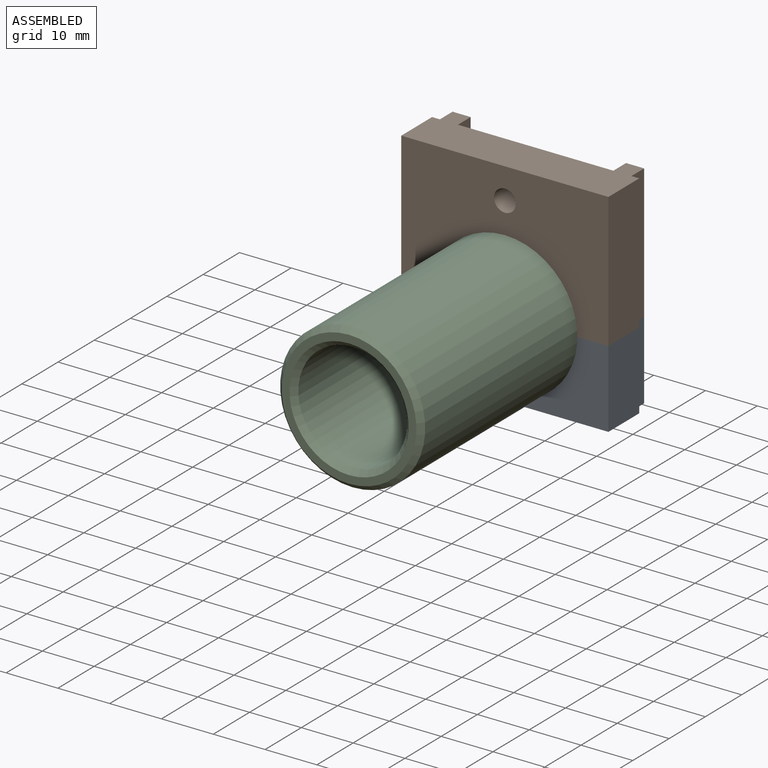
[diagram: assembled view]
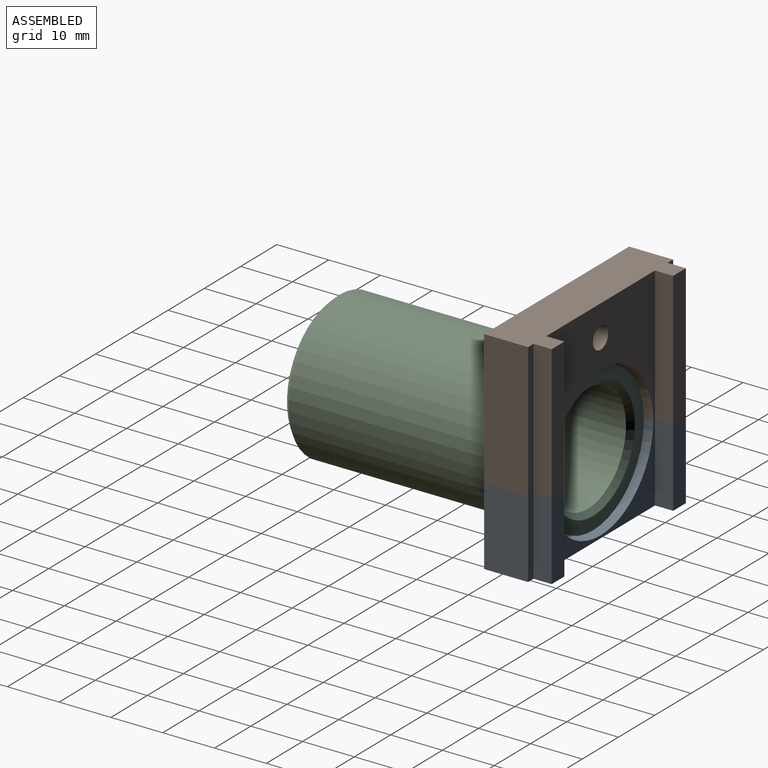
[diagram: assembled view, second angle]
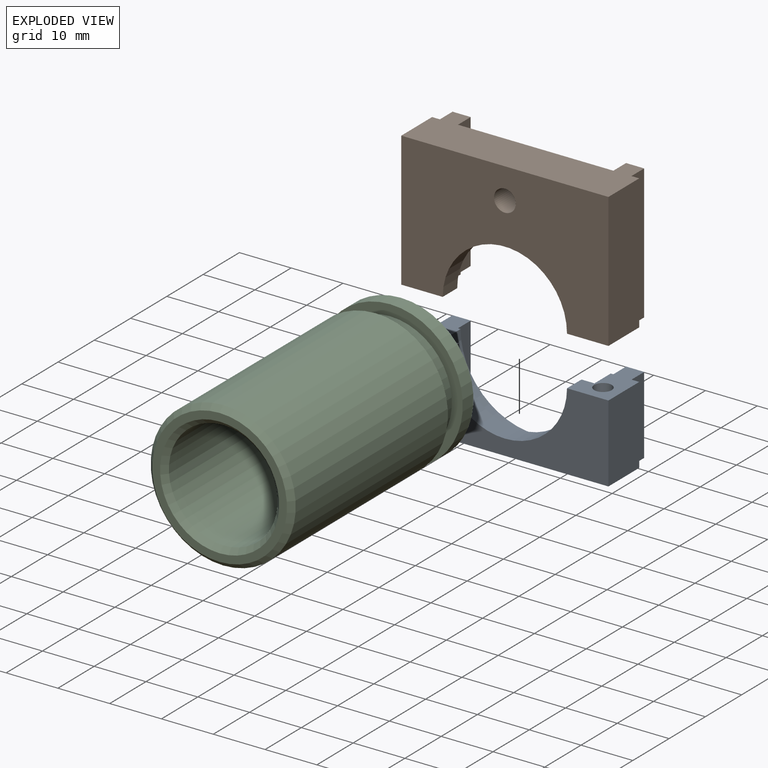
[diagram: exploded view]
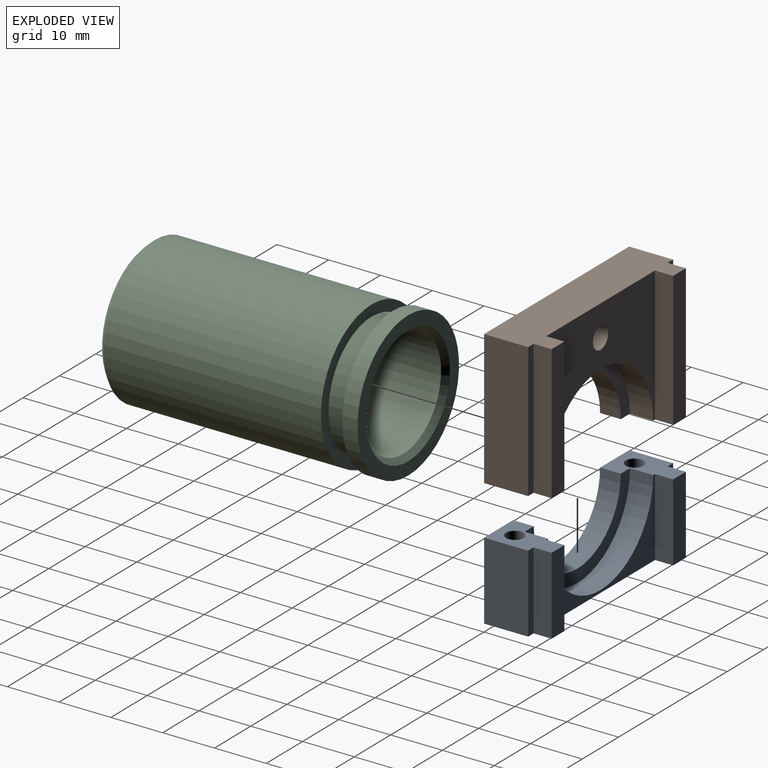
[diagram: exploded view, second angle]
ASSEMBLY  parts=3 mates=5
PART A: 24 faces, bbox 40x15x12 mm
  f0: plane 40x12mm, normal (0,1,0), area 298.1mm2, adj f3,f4,f5,f6,f7,f11,f12,f13
  f1: plane 12x8mm, normal (0,-1,0), area 59.9mm2, adj f3,f4,f7,f8,f9,f10,f13,f14
  f2: plane 12x8mm, normal (0,-1,0), area 59.9mm2, adj f5,f6,f7,f8,f9,f10,f11,f12
  f3: plane 15x3.5mm, normal (0,0,1), area 52.5mm2, adj f0,f1,f13,f17
  f4: plane 15x8.5mm, normal (1,0,0), area 127.5mm2, adj f0,f1,f7,f14
  f5: plane 15x8.5mm, normal (-1,0,0), area 127.5mm2, adj f0,f2,f7,f11
  f6: plane 15x3.5mm, normal (0,0,1), area 52.5mm2, adj f0,f2,f12,f16
  f7: plane 40x15mm, normal (0,0,-1), area 373.8mm2, adj f0,f1,f2,f4,f5,f10
  f8: cylinder r=14.5mm len=29mm, axis (0,0,1), area 205mm2, adj f1,f2,f9,f15
  f9: plane 29x14.5mm, normal (0,0,1), area 104.1mm2, adj f1,f2,f8,f10
  f10: cylinder r=12mm len=24mm, axis (0,0,1), area 150.8mm2, adj f1,f2,f7,f9
  f11: plane 15x1.5mm, normal (0,0,1), area 22.5mm2, adj f0,f2,f5,f12
  f12: plane 15x3.5mm, normal (-1,0,0), area 52.5mm2, adj f0,f2,f6,f11
  f13: plane 15x3.5mm, normal (1,0,0), area 52.5mm2, adj f0,f1,f3,f14
  f14: plane 15x1.5mm, normal (0,0,1), area 22.5mm2, adj f0,f1,f4,f13
  f15: plane 30x15mm, normal (0,0,1), area 119.7mm2, adj f0,f1,f2,f8,f16,f17
  f16: plane 15x3.5mm, normal (1,0,0), area 52.5mm2, adj f0,f2,f6,f15
  f17: plane 15x3.5mm, normal (-1,0,0), area 52.5mm2, adj f0,f1,f3,f15
  f18: cylinder r=1.7mm len=12mm, axis (0,1,0), area 128.2mm2, adj f1,f19
  f19: plane 6.5x6.5mm, normal (0,1,0), area 24.1mm2, adj f18,f20
  f20: cylinder r=3.25mm len=6.5mm, axis (0,1,0), area 61.3mm2, adj f0,f19
  f21: cylinder r=1.7mm len=12mm, axis (0,1,0), area 128.2mm2, adj f2,f22
  f22: plane 6.5x6.5mm, normal (0,1,0), area 24.1mm2, adj f21,f23
  f23: cylinder r=3.25mm len=6.5mm, axis (0,1,0), area 61.3mm2, adj f0,f22
PART B: 23 faces, bbox 40x26x12 mm
  f0: plane 12x8mm, normal (0,-1,0), area 64.1mm2, adj f1,f2,f4,f6,f9,f10,f12,f13
  f1: cylinder r=12mm len=24mm, axis (0,0,1), area 150.8mm2, adj f0,f2,f8,f17
  f2: plane 40x26mm, normal (0,0,-1), area 800mm2, adj f0,f1,f5,f6,f7,f8,f22
  f3: plane 26x3.5mm, normal (0,0,1), area 91mm2, adj f5,f8,f11,f14
  f4: plane 26x3.5mm, normal (0,0,1), area 91mm2, adj f0,f5,f9,f13
  f5: plane 40x12mm, normal (0,1,0), area 364.5mm2, adj f2,f3,f4,f6,f7,f9,f10,f11
  f6: plane 26x8.5mm, normal (-1,0,0), area 221mm2, adj f0,f2,f5,f12
  f7: plane 26x8.5mm, normal (1,0,0), area 221mm2, adj f2,f5,f8,f15
  f8: plane 12x8mm, normal (0,-1,0), area 64.1mm2, adj f1,f2,f3,f7,f10,f11,f14,f15
  f9: plane 26x3.5mm, normal (1,0,0), area 91mm2, adj f0,f4,f5,f10
  f10: plane 30x26mm, normal (0,0,1), area 435.9mm2, adj f0,f5,f8,f9,f11,f16,f22
  f11: plane 26x3.5mm, normal (-1,0,0), area 91mm2, adj f3,f5,f8,f10
  f12: plane 26x1.5mm, normal (0,0,1), area 39mm2, adj f0,f5,f6,f13
  f13: plane 26x3.5mm, normal (-1,0,0), area 91mm2, adj f0,f4,f5,f12
  f14: plane 26x3.5mm, normal (1,0,0), area 91mm2, adj f3,f5,f8,f15
  f15: plane 26x1.5mm, normal (0,0,1), area 39mm2, adj f5,f7,f8,f14
  f16: cylinder r=14.5mm len=29mm, axis (0,0,1), area 205mm2, adj f0,f8,f10,f17
  f17: plane 29x14.5mm, normal (0,0,1), area 104.1mm2, adj f0,f1,f8,f16
  f18: cone r=0mm half-angle=59deg, axis (0,-1,0), area 5.7mm2, adj f19
  f19: cylinder r=1.25mm len=13.5mm, axis (0,-1,0), area 106mm2, adj f0,f18
  f20: cone r=0mm half-angle=59deg, axis (0,-1,0), area 5.7mm2, adj f21
  f21: cylinder r=1.25mm len=13.5mm, axis (0,-1,0), area 106mm2, adj f8,f20
  f22: cylinder r=2.1mm len=8.5mm, axis (0,0,-1), area 112.2mm2, adj f2,f10
PART C: 11 faces, bbox 28x50x28 mm
  f0: cylinder r=14mm len=28mm, axis (0,1,0), area 259.5mm2, adj f1,f2
  f1: plane 28x28mm, normal (0,1,0), area 200.3mm2, adj f0,f9
  f2: plane 28x28mm, normal (0,-1,0), area 170.9mm2, adj f0,f4
  f3: plane 28x28mm, normal (0,1,0), area 170.9mm2, adj f4,f6
  f4: cylinder r=11.9mm len=23.8mm, axis (0,1,0), area 306.6mm2, adj f2,f3
  f5: plane 26x26mm, normal (0,-1,0), area 115.5mm2, adj f8,f10
  f6: cylinder r=14mm len=41.95mm, axis (0,1,0), area 3690.1mm2, adj f3,f8
  f7: cylinder r=10.5mm len=48mm, axis (0,-1,0), area 3166.7mm2, adj f9,f10
  f8: cone r=13mm half-angle=45deg, axis (0,1,0), area 120mm2, adj f5,f6
  f9: cone r=10.5mm half-angle=45deg, axis (0,1,0), area 97.7mm2, adj f1,f7
  f10: cone r=10.5mm half-angle=45deg, axis (0,-1,0), area 97.7mm2, adj f5,f7
PLACE A rot(axis=(-1,0,0),90deg) t=(59.5,49.69,-34.1)mm
PLACE B rot(axis=(0,0.71,0.71),180deg) t=(59.5,49.69,-19.1)mm
PLACE C t=(59.5,56.74,-19.1)mm
MATE planar B.f8 <-> A.f2  axis (0,0,-1) through (42.91,54.79,-19.1)mm
MATE planar B.f2 <-> A.f7  axis (0,-1,0) through (59.5,49.69,-3.99)mm
MATE cylindrical B.f1 <-> C.f0  axis (0,1,0) through (59.5,51.69,-19.1)mm
MATE cylindrical B.f18 <-> A.f18  axis (0,0,-1) through (76,53.19,-19.1)mm
MATE planar B.f2 <-> C.f7  axis (0,-1,0) through (59.5,49.69,-3.99)mm
